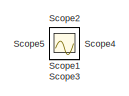
[diagram: root canvas - part 1/3, top left region]
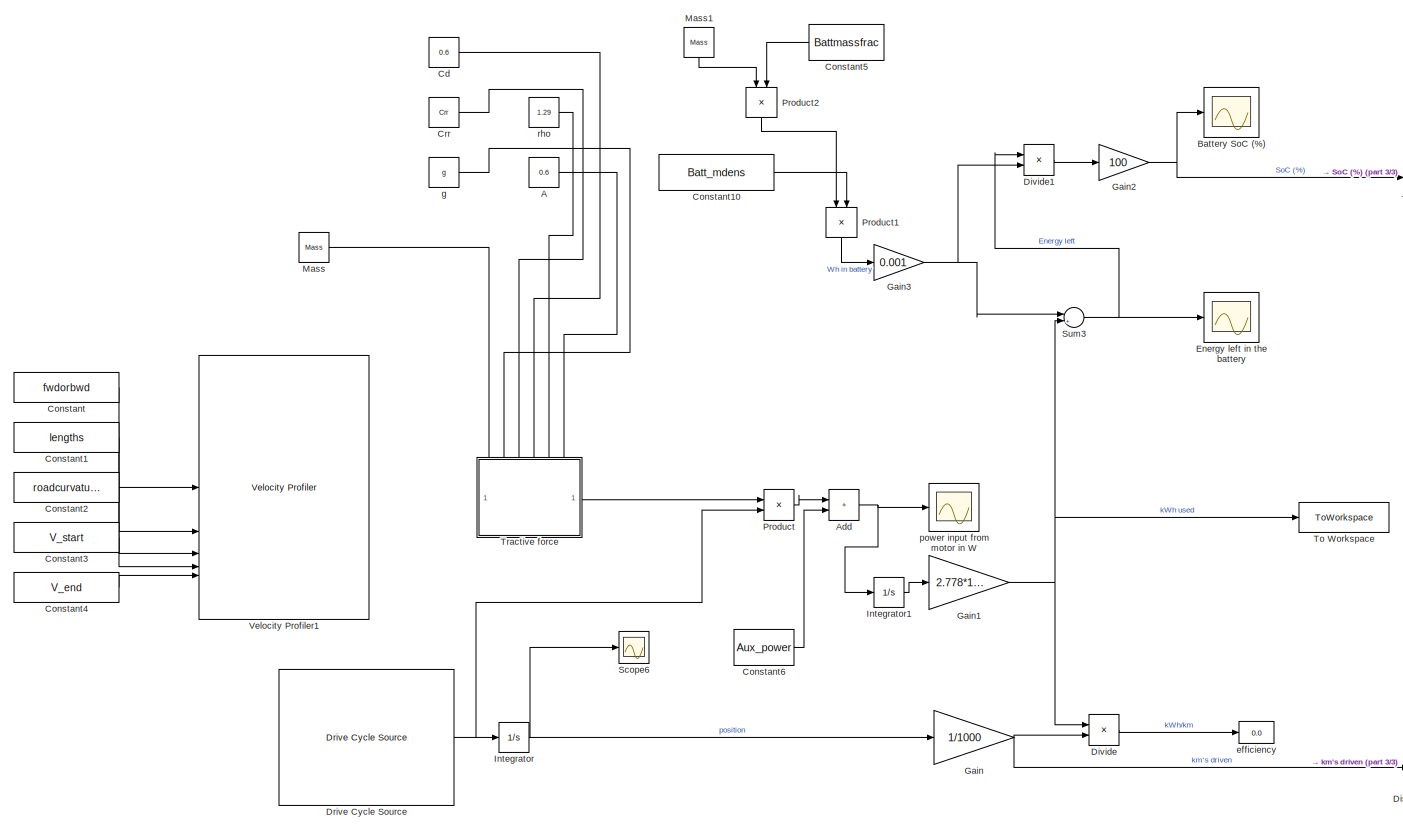
[diagram: root canvas - part 2/3, right side, full height]
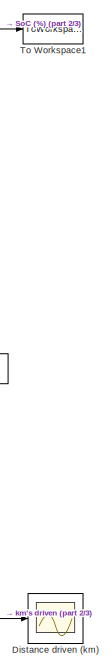
[diagram: root canvas - part 3/3, middle right region]
MODEL slx_e6aa8e28abea
KIND model
CONFIG AbsTol = auto
CONFIG EnableMultiTasking = off
CONFIG FixedStep = T_step
CONFIG MaxStep = auto
CONFIG MinStep = auto
CONFIG RelTol = 1e-3
CONFIG SampleTimeConstraint = Unconstrained
CONFIG SolverName = VariableStepAuto
CONFIG StartTime = T_start
CONFIG StopTime = T_stop
BLOCK [Constant] A
  Value = 0.6
BLOCK [Sum] Add
  IconShape = rectangular
BLOCK [Scope] Battery SoC (%)
  Floating = off
  NumInputPorts = 1
  ScopeSpecificationString = Simulink.scopes.TimeScopeBlockCfg('CurrentConfiguration', extmgr.ConfigurationSet(extmgr.Configuration('Core','General UI',true,'DisplayFullSourceName',true),extmgr.Configuration('Core','Source UI',true),extmgr.Configuration('Sources','WiredSimulink',true,'DataLoggingVariableName','ScopeData2','SampleTime','T_step'),extmgr.Configuration('Visuals','Time Domain',true,'SerializedDisplays',{struct('Mi...<+3356ch>
BLOCK [Constant] Cd
  Value = 0.6
BLOCK [Constant] Constant
  Commented = on
  Value = fwdorbwd
BLOCK [Constant] Constant1
  Commented = on
  Value = lengths
BLOCK [Constant] Constant10
  Value = Batt_mdens
BLOCK [Constant] Constant2
  Commented = on
  Value = roadcurvatures
BLOCK [Constant] Constant3
  Commented = on
  Value = V_start
BLOCK [Constant] Constant4
  Commented = on
  Value = V_end
BLOCK [Constant] Constant5
  NameLocation = top
  Value = Battmassfrac
BLOCK [Constant] Constant6
  Value = Aux_power
BLOCK [Constant] Crr
  Value = Crr
BLOCK [Scope] Distance driven (km)
  Floating = off
  NumInputPorts = 1
  ScopeSpecificationString = Simulink.scopes.TimeScopeBlockCfg('CurrentConfiguration', extmgr.ConfigurationSet(extmgr.Configuration('Core','General UI',true,'DisplayFullSourceName',true),extmgr.Configuration('Core','Source UI',true),extmgr.Configuration('Sources','WiredSimulink',true,'DataLoggingVariableName','ScopeData2','SampleTime','T_step'),extmgr.Configuration('Visuals','Time Domain',true,'SerializedDisplays',{struct('Mi...<+3322ch>
BLOCK [Product] Divide
  Inputs = */
BLOCK [Product] Divide1
  Inputs = */
BLOCK [Reference] Drive Cycle Source  REF=autolibshared/Drive Cycle Source
  AttributesFormatString = %<cycleVar> (%<tfinal>)
  LibrarySourceBlock = autolibscenario/Drive Cycle Source
  SourceBlock = autolibshared/Drive Cycle Source
  SourceType = Drive Cycle Source
BLOCK [Scope] Energy left in the battery 
  Floating = off
  NumInputPorts = 1
  ScopeSpecificationString = Simulink.scopes.TimeScopeBlockCfg('CurrentConfiguration', extmgr.ConfigurationSet(extmgr.Configuration('Core','General UI',true,'DisplayFullSourceName',true),extmgr.Configuration('Core','Source UI',true),extmgr.Configuration('Sources','WiredSimulink',true,'DataLoggingVariableName','ScopeData1','SampleTime','T_step'),extmgr.Configuration('Visuals','Time Domain',true,'SerializedDisplays',{struct('Mi...<+3311ch>
BLOCK [Gain] Gain
  Gain = 1/1000
BLOCK [Gain] Gain1
  Gain = 2.778*10^-7
BLOCK [Gain] Gain2
  Gain = 100
BLOCK [Gain] Gain3
  Gain = 0.001
BLOCK [Integrator] Integrator
BLOCK [Integrator] Integrator1
BLOCK [Constant] Mass
  Value = Mass
BLOCK [Constant] Mass1
  NameLocation = left
  Value = Mass
BLOCK [Product] Product
BLOCK [Product] Product1
  NameLocation = left
BLOCK [Product] Product2
  NameLocation = left
BLOCK [Scope] Scope1
  Floating = off
  IOType = viewer
  NumInputPorts = 1
  ScopeSpecificationString = Simulink.scopes.TimeScopeBlockCfg('CurrentConfiguration', extmgr.ConfigurationSet(extmgr.Configuration('Core','General UI',true),extmgr.Configuration('Core','Source UI',true),extmgr.Configuration('Sources','WiredSimulink',true,'DataLoggingVariableName','ScopeData1'),extmgr.Configuration('Visuals','Time Domain',true,'SerializedDisplays',{struct('MinYLimReal','586.59541','MaxYLimReal','786.59541','Y...<+1426ch>
BLOCK [Scope] Scope2
  Floating = off
  IOType = viewer
  NumInputPorts = 1
  ScopeSpecificationString = Simulink.scopes.TimeScopeBlockCfg('CurrentConfiguration', extmgr.ConfigurationSet(extmgr.Configuration('Core','General UI',true),extmgr.Configuration('Core','Source UI',true),extmgr.Configuration('Sources','WiredSimulink',true,'DataLoggingVariableName','ScopeData1'),extmgr.Configuration('Visuals','Time Domain',true,'SerializedDisplays',{struct('MinYLimReal','-13.59855','MaxYLimReal','24.457','YLab...<+1390ch>
BLOCK [Scope] Scope3
  Floating = off
  IOType = viewer
  NumInputPorts = 1
  ScopeSpecificationString = Simulink.scopes.TimeScopeBlockCfg('CurrentConfiguration', extmgr.ConfigurationSet(extmgr.Configuration('Core','General UI',true),extmgr.Configuration('Core','Source UI',true),extmgr.Configuration('Sources','WiredSimulink',true,'DataLoggingVariableName','ScopeData2'),extmgr.Configuration('Visuals','Time Domain',true,'SerializedDisplays',{struct('MinYLimReal','-53.31024','MaxYLimReal','479.79222','Y...<+1402ch>
BLOCK [Scope] Scope4
  Floating = off
  IOType = viewer
  NumInputPorts = 1
  ScopeSpecificationString = Simulink.scopes.TimeScopeBlockCfg('CurrentConfiguration', extmgr.ConfigurationSet(extmgr.Configuration('Core','General UI',true),extmgr.Configuration('Core','Source UI',true),extmgr.Configuration('Sources','WiredSimulink',true,'DataLoggingVariableName','ScopeData3'),extmgr.Configuration('Visuals','Time Domain',true,'SerializedDisplays',{struct('MinYLimReal','-14.45578','MaxYLimReal','130.10198','Y...<+1378ch>
BLOCK [Scope] Scope5
  Floating = off
  IOType = viewer
  NumInputPorts = 1
  ScopeSpecificationString = Simulink.scopes.TimeScopeBlockCfg('CurrentConfiguration', extmgr.ConfigurationSet(extmgr.Configuration('Core','General UI',true),extmgr.Configuration('Core','Source UI',true),extmgr.Configuration('Sources','WiredSimulink',true,'DataLoggingVariableName','ScopeData4'),extmgr.Configuration('Visuals','Time Domain',true,'SerializedDisplays',{struct('MinYLimReal','791.98426','MaxYLimReal','936.54202','Y...<+1415ch>
BLOCK [Scope] Scope6
  Floating = off
  NumInputPorts = 1
  ScopeSpecificationString = Simulink.scopes.TimeScopeBlockCfg('CurrentConfiguration', extmgr.ConfigurationSet(extmgr.Configuration('Core','General UI',true),extmgr.Configuration('Core','Source UI',true),extmgr.Configuration('Sources','WiredSimulink',true,'DataLoggingVariableName','ScopeData1'),extmgr.Configuration('Visuals','Time Domain',true,'SerializedDisplays',{struct('MinYLimReal','-1501.12847','MaxYLimReal','13510.15625...<+1422ch>
BLOCK [Sum] Sum3
  Inputs = |+-
BLOCK [ToWorkspace] To Workspace
  Decimation = 2
  FixptAsFi = on
  MaxDataPoints = inf
  SampleTime = -1
  Save2DSignal = 2-D array (concatenate along first dimension)
  VariableName = simout
BLOCK [ToWorkspace] To Workspace1
  Decimation = 2
  MaxDataPoints = inf
  SampleTime = -1
  Save2DSignal = 2-D array (concatenate along first dimension)
  VariableName = simout1
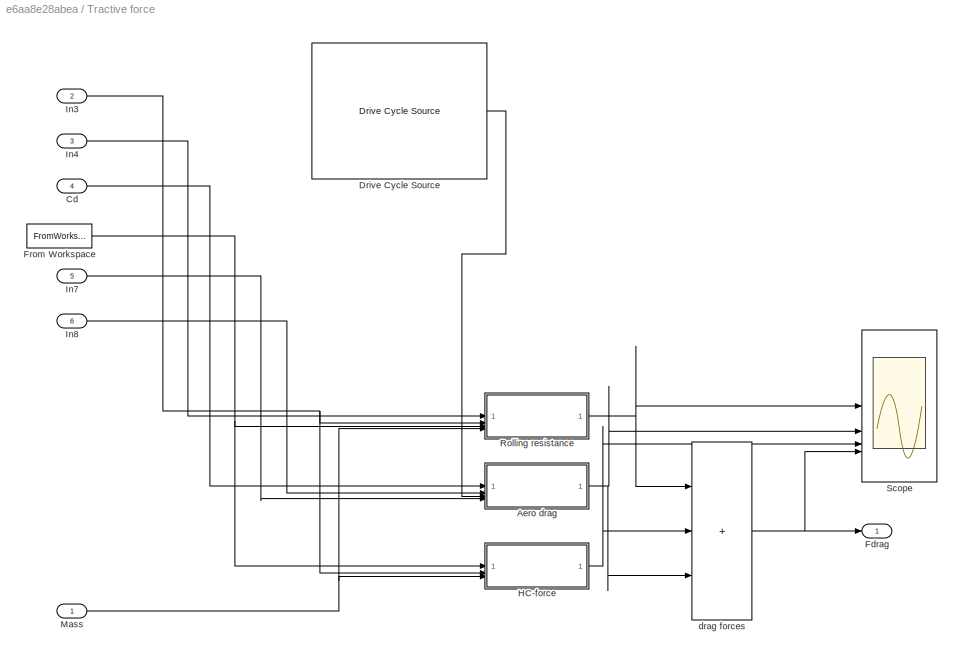
BLOCK [SubSystem] Tractive force
  PortSchema = {"entries":[{"content":{"sides":[{"content":{},"type":"ConnectorPlacement.EquallySpacedRectSide","uuid":"1dc941f5-3e74-4cbf-a52e-ea3cab36909e"},{"content":{"connectorIds":["Out1"],"side":"RIGHT"},"type":"ConnectorPlacement.EquallySpacedRectSide","uuid":"6f8e9dcb-b594-405f-a2b1-c41d344efafb"},{"content":{"connectorIds":["In1","In2","In3","In4","In5","In6"],"side":"TOP"},"type":"ConnectorPlacement.E...<+253ch>
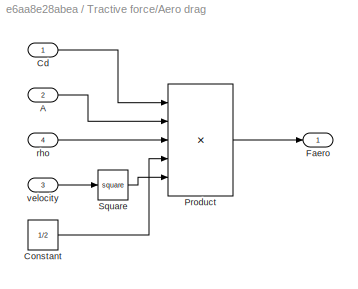
BLOCK [SubSystem] Tractive force/Aero drag
BLOCK [Inport] Tractive force/Aero drag/A
  Port = 2
BLOCK [Inport] Tractive force/Aero drag/Cd
BLOCK [Constant] Tractive force/Aero drag/Constant
  Value = 1/2
BLOCK [Outport] Tractive force/Aero drag/Faero
BLOCK [Product] Tractive force/Aero drag/Product
  Inputs = 5
BLOCK [Math] Tractive force/Aero drag/Square
  Operator = square
BLOCK [Inport] Tractive force/Aero drag/rho
  Port = 4
BLOCK [Inport] Tractive force/Aero drag/velocity
  Port = 3
BLOCK [Inport] Tractive force/Cd
  Port = 4
BLOCK [Reference] Tractive force/Drive Cycle Source  REF=autolibshared/Drive Cycle Source
  AttributesFormatString = %<cycleVar> (%<tfinal>)
  LibrarySourceBlock = autolibscenario/Drive Cycle Source
  SourceBlock = autolibshared/Drive Cycle Source
  SourceType = Drive Cycle Source
BLOCK [Outport] Tractive force/Fdrag
BLOCK [FromWorkspace] Tractive force/From Workspace
  VariableName = slope_profile
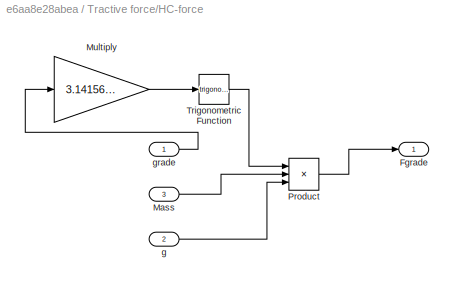
BLOCK [SubSystem] Tractive force/HC-force
BLOCK [Outport] Tractive force/HC-force/Fgrade
BLOCK [Inport] Tractive force/HC-force/Mass
  Port = 3
BLOCK [Gain] Tractive force/HC-force/Multiply
  Gain = 3.141565/180
BLOCK [Product] Tractive force/HC-force/Product
  Inputs = 3
BLOCK [Trigonometry] Tractive force/HC-force/Trigonometric Function
BLOCK [Inport] Tractive force/HC-force/g
  Port = 2
BLOCK [Inport] Tractive force/HC-force/grade
BLOCK [Inport] Tractive force/In3
  Port = 2
BLOCK [Inport] Tractive force/In4
  Port = 3
BLOCK [Inport] Tractive force/In7
  Port = 5
BLOCK [Inport] Tractive force/In8
  Port = 6
BLOCK [Inport] Tractive force/Mass
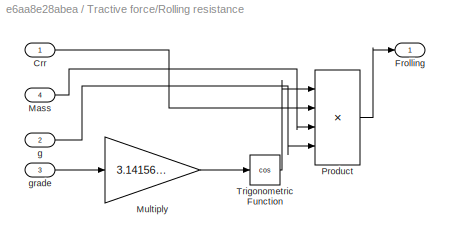
BLOCK [SubSystem] Tractive force/Rolling resistance
BLOCK [Inport] Tractive force/Rolling resistance/Crr
BLOCK [Outport] Tractive force/Rolling resistance/Frolling
BLOCK [Inport] Tractive force/Rolling resistance/Mass
  Port = 4
BLOCK [Gain] Tractive force/Rolling resistance/Multiply
  Gain = 3.141565/180
BLOCK [Product] Tractive force/Rolling resistance/Product
  Inputs = 4
BLOCK [Trigonometry] Tractive force/Rolling resistance/Trigonometric Function
  Operator = cos
BLOCK [Inport] Tractive force/Rolling resistance/g
  Port = 2
BLOCK [Inport] Tractive force/Rolling resistance/grade
  Port = 3
BLOCK [Scope] Tractive force/Scope
  Floating = off
  NumInputPorts = 4
  ScopeSpecificationString = Simulink.scopes.TimeScopeBlockCfg('CurrentConfiguration', extmgr.ConfigurationSet(extmgr.Configuration('Core','General UI',true,'FigureColor',[0 0 0]),extmgr.Configuration('Core','Source UI',true),extmgr.Configuration('Sources','WiredSimulink',true,'DataLoggingVariableName','ScopeData1','SampleTime','T_step'),extmgr.Configuration('Visuals','Time Domain',true,'SerializedDisplays',{struct('MinYLimRe...<+1691ch>
BLOCK [Sum] Tractive force/drag forces
  IconShape = rectangular
  Inputs = +++
BLOCK [Reference] Velocity Profiler1  REF=drivinglib/Velocity Profiler
  Commented = on
  SourceBlock = drivinglib/Velocity Profiler
  SourceType = driving.internal.planning.VelocityProfiler
BLOCK [Display] efficiency
  Decimation = 1
  Format = bank
BLOCK [Constant] g
  Value = g
BLOCK [Scope] power input from motor in W
  Floating = off
  NumInputPorts = 1
  ScopeSpecificationString = Simulink.scopes.TimeScopeBlockCfg('CurrentConfiguration', extmgr.ConfigurationSet(extmgr.Configuration('Core','General UI',true),extmgr.Configuration('Core','Source UI',true),extmgr.Configuration('Sources','WiredSimulink',true,'DataLoggingVariableName','ScopeData12','SampleTime','T_step'),extmgr.Configuration('Visuals','Time Domain',true,'SerializedDisplays',{struct('MinYLimReal','-1330.50608','Ma...<+1465ch>
BLOCK [Constant] rho
  Value = 1.29
LINE A:1 -> Tractive force:6
NET Add:1 -> Integrator1:1, power input from motor in W:1
LINE Cd:1 -> Tractive force:4
LINE Constant10:1 -> Product1:2
LINE Constant1:1 -> Velocity Profiler1:2
LINE Constant2:1 -> Velocity Profiler1:3
LINE Constant3:1 -> Velocity Profiler1:4
LINE Constant4:1 -> Velocity Profiler1:5
LINE Constant5:1 -> Product2:2
LINE Constant6:1 -> Add:2
LINE Constant:1 -> Velocity Profiler1:1
LINE Crr:1 -> Tractive force:3
LINE Divide1:1 -> Gain2:1
LINE Divide:1 -> efficiency:1
NET Drive Cycle Source:1 -> Integrator:1, Product:2
NET Gain1:1 -> Divide:1, Sum3:2, To Workspace:1
NET Gain2:1 -> Battery SoC (%):1, To Workspace1:1
NET Gain3:1 -> Divide1:2, Sum3:1
NET Gain:1 -> Distance driven (km):1, Divide:2
LINE Integrator1:1 -> Gain1:1
NET Integrator:1 -> Gain:1, Scope6:1
LINE Mass1:1 -> Product2:1
LINE Mass:1 -> Tractive force:1
LINE Product1:1 -> Gain3:1
LINE Product2:1 -> Product1:1
LINE Product:1 -> Add:1
NET Sum3:1 -> Divide1:1, Energy left in the battery :1
LINE Tractive force/Aero drag/A:1 -> Tractive force/Aero drag/Product:2
LINE Tractive force/Aero drag/Cd:1 -> Tractive force/Aero drag/Product:1
LINE Tractive force/Aero drag/Constant:1 -> Tractive force/Aero drag/Product:4
LINE Tractive force/Aero drag/Product:1 -> Tractive force/Aero drag/Faero:1
LINE Tractive force/Aero drag/Square:1 -> Tractive force/Aero drag/Product:5
LINE Tractive force/Aero drag/rho:1 -> Tractive force/Aero drag/Product:3
LINE Tractive force/Aero drag/velocity:1 -> Tractive force/Aero drag/Square:1
NET Tractive force/Aero drag:1 -> Tractive force/Scope:2, Tractive force/drag forces:3
LINE Tractive force/Cd:1 -> Tractive force/Aero drag:1
LINE Tractive force/Drive Cycle Source:1 -> Tractive force/Aero drag:3
NET Tractive force/From Workspace:1 -> Tractive force/HC-force:1, Tractive force/Rolling resistance:3
LINE Tractive force/HC-force/Mass:1 -> Tractive force/HC-force/Product:2
LINE Tractive force/HC-force/Multiply:1 -> Tractive force/HC-force/Trigonometric Function:1
LINE Tractive force/HC-force/Product:1 -> Tractive force/HC-force/Fgrade:1
LINE Tractive force/HC-force/Trigonometric Function:1 -> Tractive force/HC-force/Product:1
LINE Tractive force/HC-force/g:1 -> Tractive force/HC-force/Product:3
LINE Tractive force/HC-force/grade:1 -> Tractive force/HC-force/Multiply:1
NET Tractive force/HC-force:1 -> Tractive force/Scope:3, Tractive force/drag forces:2
NET Tractive force/In3:1 -> Tractive force/HC-force:2, Tractive force/Rolling resistance:2
LINE Tractive force/In4:1 -> Tractive force/Rolling resistance:1
LINE Tractive force/In7:1 -> Tractive force/Aero drag:4
LINE Tractive force/In8:1 -> Tractive force/Aero drag:2
NET Tractive force/Mass:1 -> Tractive force/HC-force:3, Tractive force/Rolling resistance:4
LINE Tractive force/Rolling resistance/Crr:1 -> Tractive force/Rolling resistance/Product:2
LINE Tractive force/Rolling resistance/Mass:1 -> Tractive force/Rolling resistance/Product:3
LINE Tractive force/Rolling resistance/Multiply:1 -> Tractive force/Rolling resistance/Trigonometric Function:1
LINE Tractive force/Rolling resistance/Product:1 -> Tractive force/Rolling resistance/Frolling:1
LINE Tractive force/Rolling resistance/Trigonometric Function:1 -> Tractive force/Rolling resistance/Product:1
LINE Tractive force/Rolling resistance/g:1 -> Tractive force/Rolling resistance/Product:4
LINE Tractive force/Rolling resistance/grade:1 -> Tractive force/Rolling resistance/Multiply:1
NET Tractive force/Rolling resistance:1 -> Tractive force/Scope:1, Tractive force/drag forces:1
NET Tractive force/drag forces:1 -> Tractive force/Fdrag:1, Tractive force/Scope:4
LINE Tractive force:1 -> Product:1
LINE g:1 -> Tractive force:2
LINE rho:1 -> Tractive force:5
note: NET lines group one-source signal fan-out (src -> all destinations, sorted); 1:1 wires keep LINE
